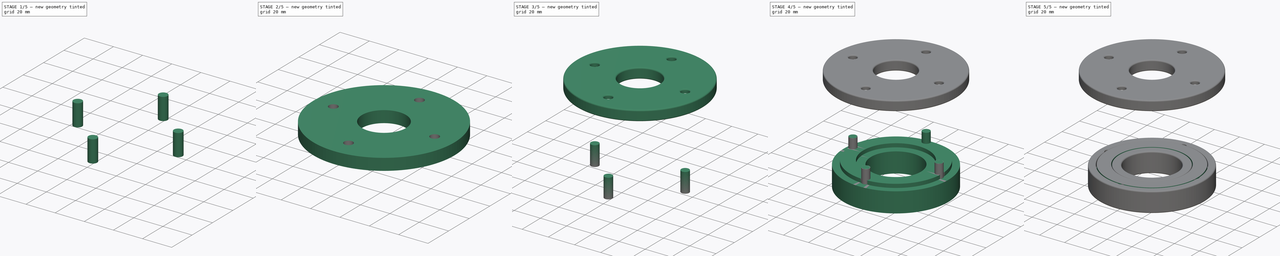
[diagram: build sequence overview — one tinted view per stage of 5, left to right]
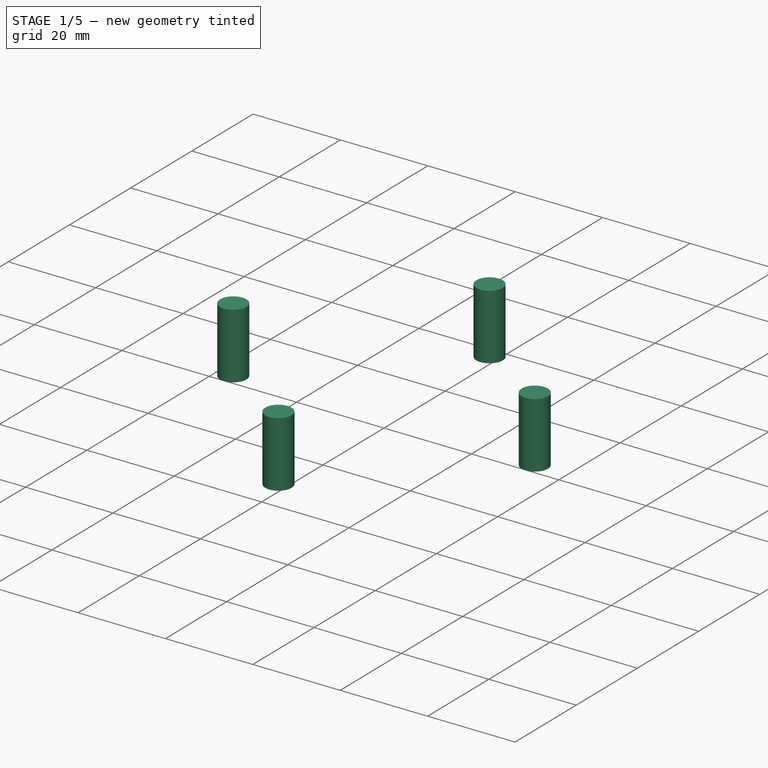
[diagram: stage 1 of 5 — iso view after this stage's code; geometry added in this stage tinted green]
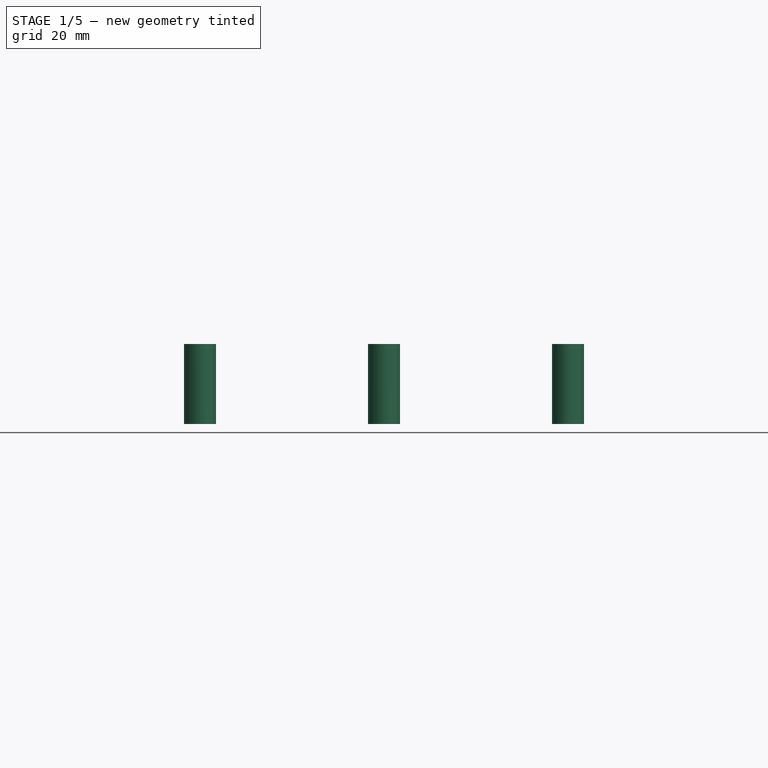
[diagram: stage 1 of 5 — front view after this stage's code; geometry added in this stage tinted green]
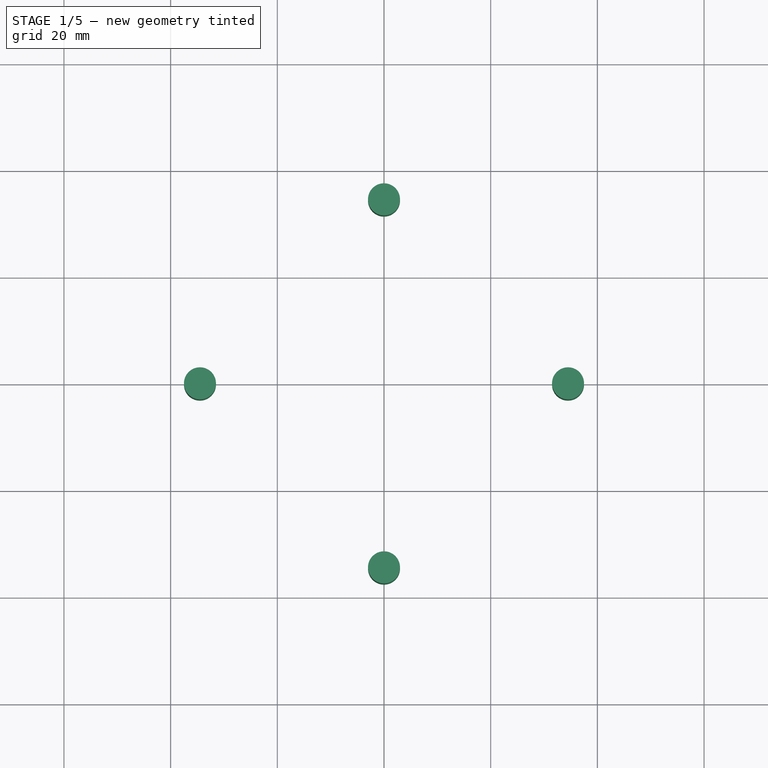
[diagram: stage 1 of 5 — top view after this stage's code; geometry added in this stage tinted green]
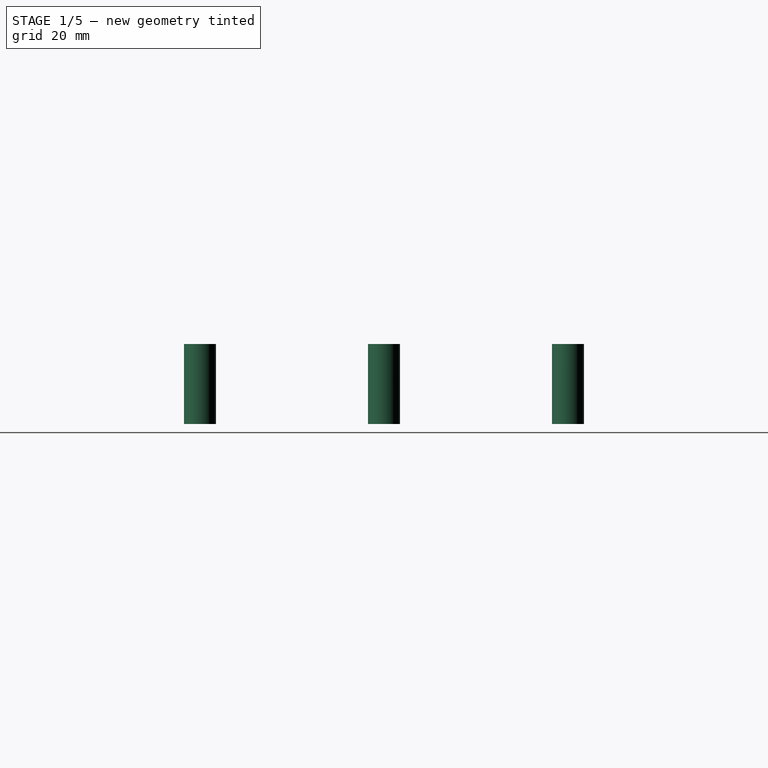
[diagram: stage 1 of 5 — right view after this stage's code; geometry added in this stage tinted green]
FCSTD DOCUMENT  (FreeCAD 1.0R39109 (Git))
Label: RubberSealStencil
License: All rights reserved
LicenseURL: https://en.wikipedia.org/wiki/All_rights_reserved
objects: Part::Cylinder×8, Part::FeaturePython×4, Part::Cut×4, Sketcher::SketchObject×3, Part::Extrusion×3, Part::MultiFuse×3, Part::Fillet×2, App::Part×1
note: 30 computed .brp shape members not serialized (recipe doc carries the construction recipe); baked Part::Feature solids carry a one-line shape summary decoded from their .brp

FEATURE [Part::Cylinder] Cylinder
  Angle = 360
  AttacherType = Attacher::AttachEngine3D
  FirstAngle = 0
  Height = 15
  Placement = pos=(0,34.5,15) rot=(0,0,1;0rad)
  Radius = 3
  SecondAngle = 0
FEATURE [Part::Cylinder] Cylinder001
  Angle = 360
  AttacherType = Attacher::AttachEngine3D
  FirstAngle = 0
  Height = 15
  Placement = pos=(0,-34.5,15) rot=(0,0,1;0rad)
  Radius = 3
  SecondAngle = 0
FEATURE [Part::Cylinder] Cylinder002
  Angle = 360
  AttacherType = Attacher::AttachEngine3D
  FirstAngle = 0
  Height = 15
  Placement = pos=(-34.5,0,15) rot=(0,0,1;0rad)
  Radius = 3
  SecondAngle = 0
FEATURE [Part::Cylinder] Cylinder003
  Angle = 360
  AttacherType = Attacher::AttachEngine3D
  FirstAngle = 0
  Height = 15
  Placement = pos=(34.5,0,15) rot=(0,0,1;0rad)
  Radius = 3
  SecondAngle = 0
FEATURE [Part::MultiFuse] Fusion001
  Refine = true
  Shapes = -> [Cylinder,Cylinder001,Cylinder002,Cylinder003]
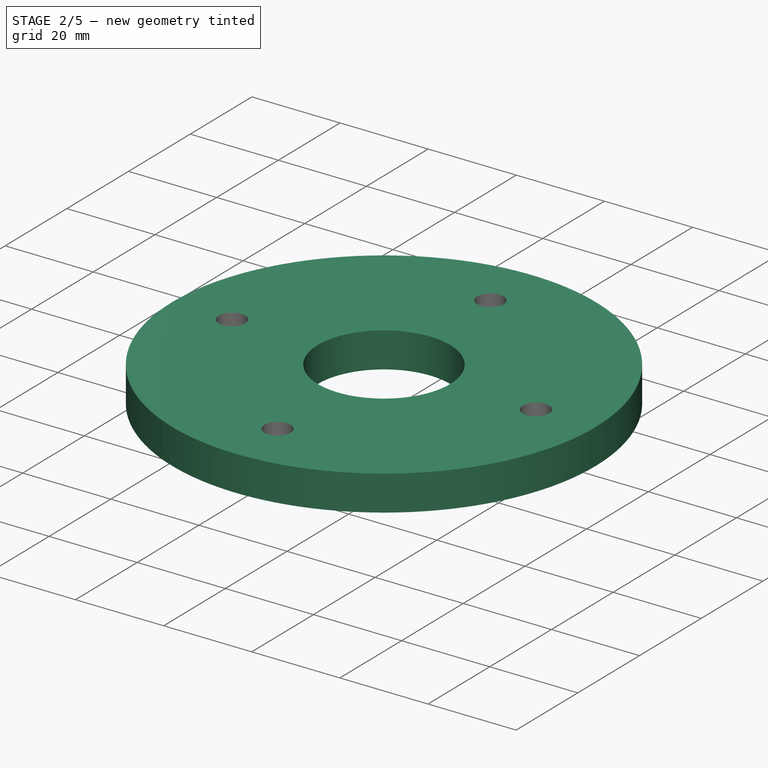
[diagram: stage 2 of 5 — iso view after this stage's code; geometry added in this stage tinted green]
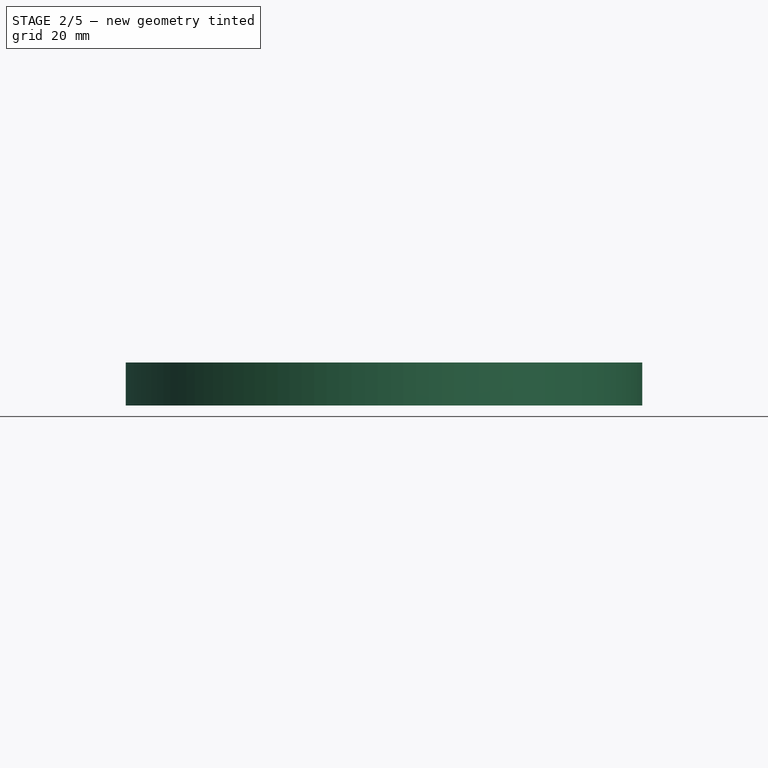
[diagram: stage 2 of 5 — front view after this stage's code; geometry added in this stage tinted green]
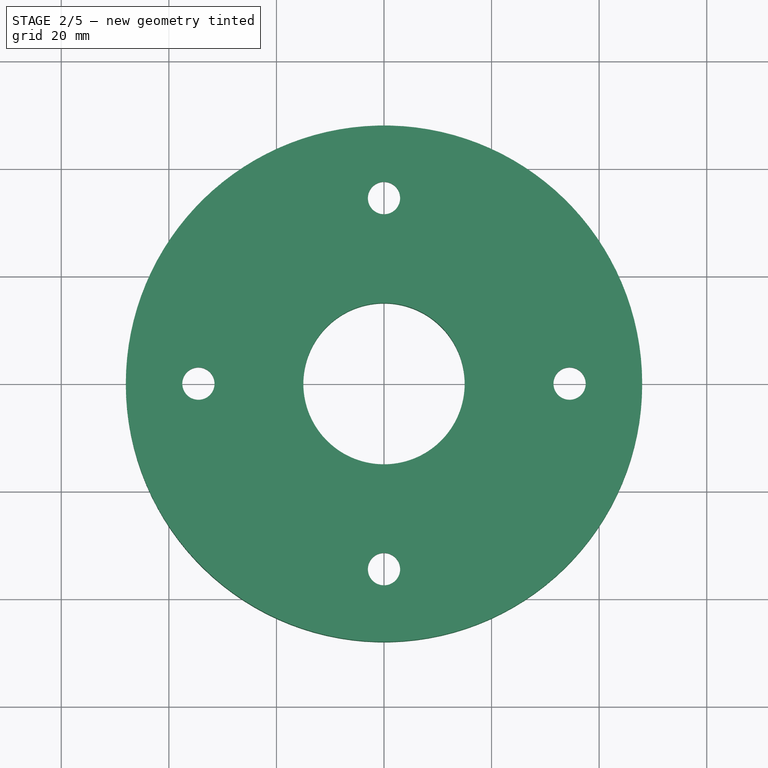
[diagram: stage 2 of 5 — top view after this stage's code; geometry added in this stage tinted green]
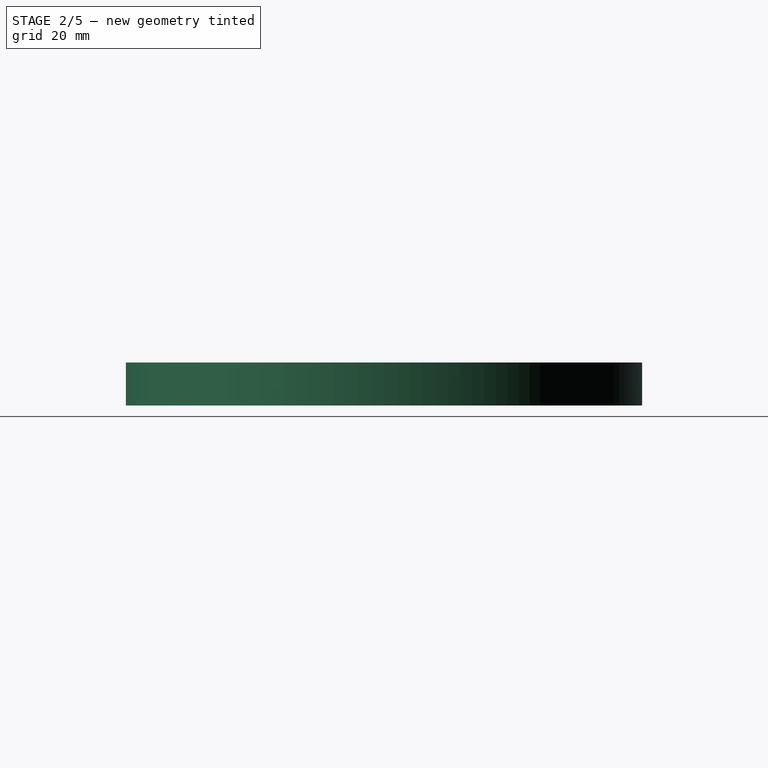
[diagram: stage 2 of 5 — right view after this stage's code; geometry added in this stage tinted green]
FEATURE [Part::FeaturePython] Tube001  # WARN: FeaturePython — macro-defined, semantics opaque (R4)
  AttacherType = Attacher::AttachEngine3D
  Height = 3
  InnerRadius = 15
  OuterRadius = 48
  Placement = pos=(0,0,19.5) rot=(0,0,1;0rad)
FEATURE [Part::FeaturePython] Tube002  # WARN: FeaturePython — macro-defined, semantics opaque (R4)
  AttacherType = Attacher::AttachEngine3D
  Height = 5
  InnerRadius = 42.5
  OuterRadius = 48
  Placement = pos=(0,0,14.5) rot=(0,0,1;0rad)
FEATURE [Part::FeaturePython] Tube003  # WARN: FeaturePython — macro-defined, semantics opaque (R4)
  AttacherType = Attacher::AttachEngine3D
  Height = 5
  InnerRadius = 15
  OuterRadius = 19
  Placement = pos=(0,0,14.5) rot=(0,0,1;0rad)
FEATURE [Part::MultiFuse] Fusion  label="Top"
  Refine = true
  Shapes = -> [Tube001,Tube002,Tube003]
FEATURE [Part::Cut] Cut002  label="Top_cut"
  Base = -> Fusion
  Refine = true
  Tool = -> Fusion001
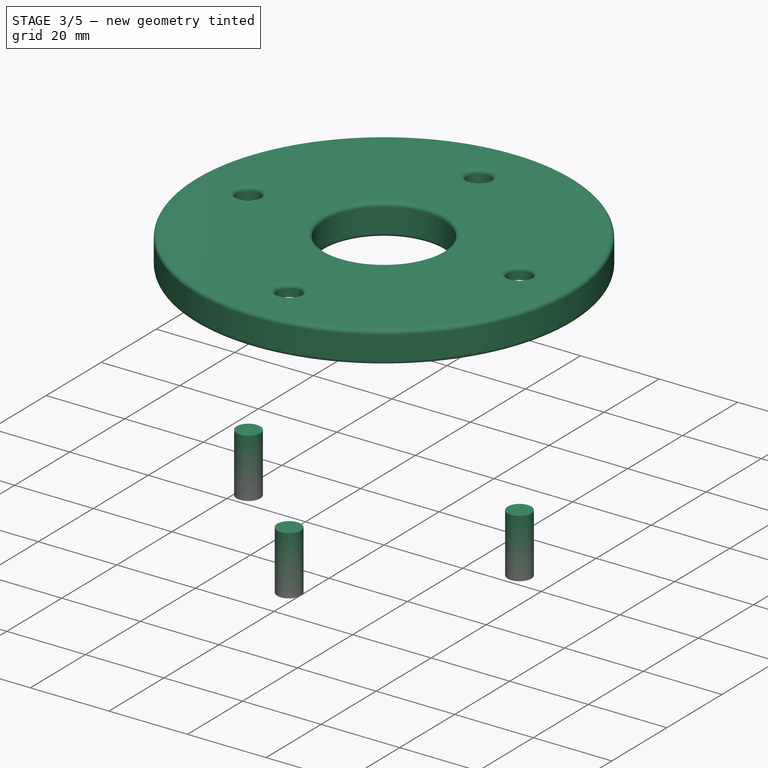
[diagram: stage 3 of 5 — iso view after this stage's code; geometry added in this stage tinted green]
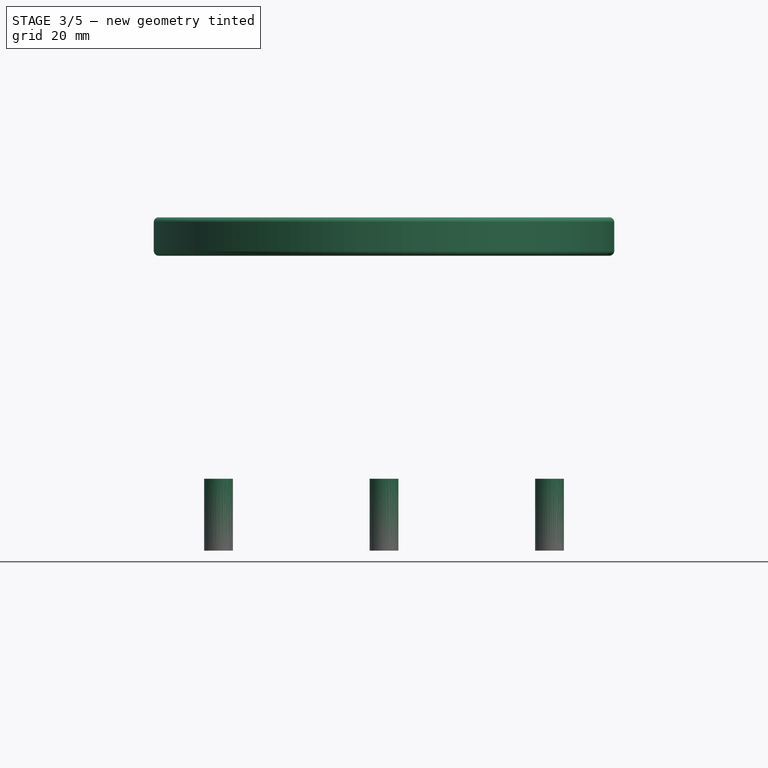
[diagram: stage 3 of 5 — front view after this stage's code; geometry added in this stage tinted green]
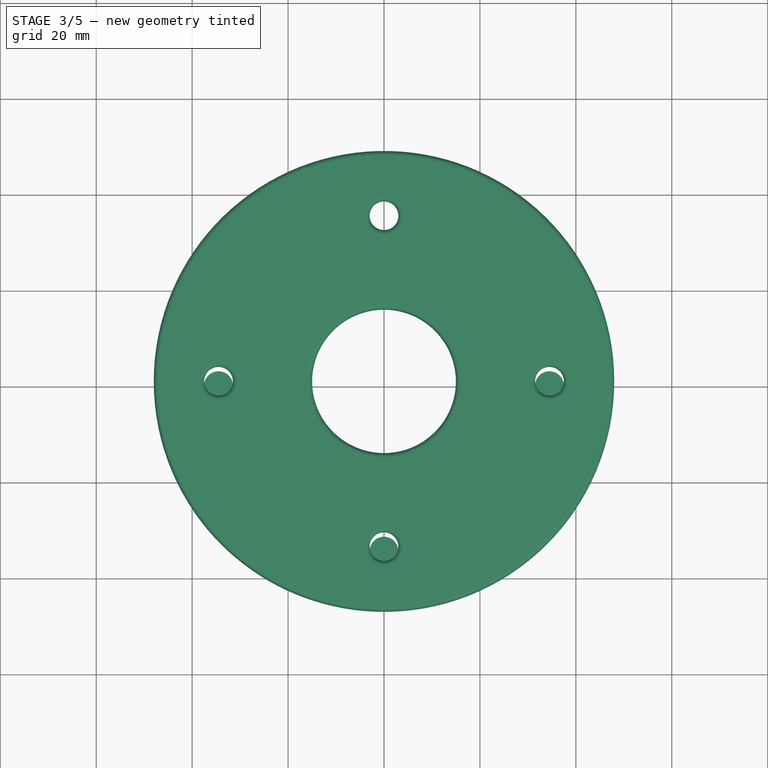
[diagram: stage 3 of 5 — top view after this stage's code; geometry added in this stage tinted green]
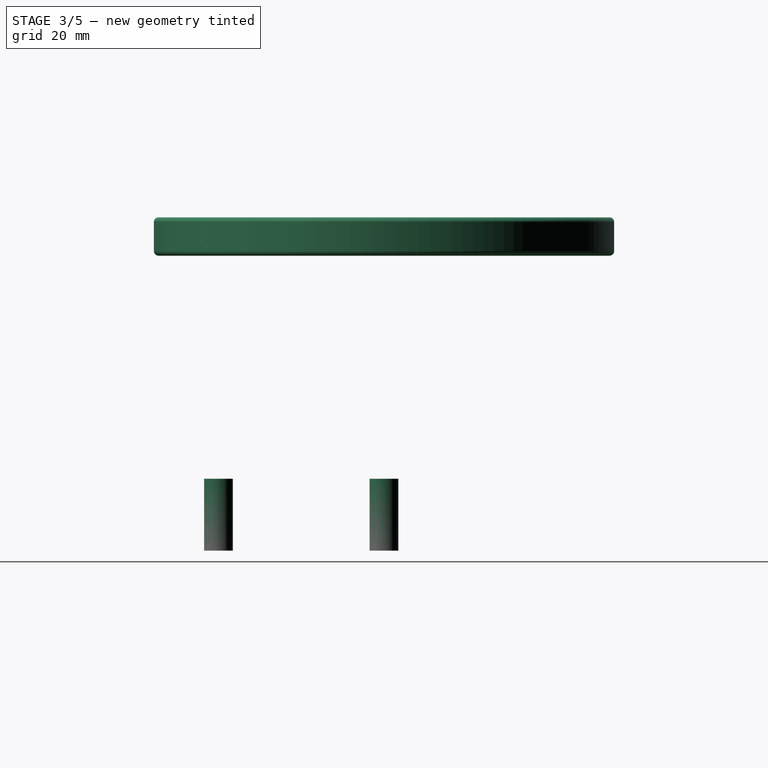
[diagram: stage 3 of 5 — right view after this stage's code; geometry added in this stage tinted green]
FEATURE [Part::Cylinder] Cylinder005
  Angle = 360
  AttacherType = Attacher::AttachEngine3D
  FirstAngle = 0
  Height = 15
  Placement = pos=(0,-34.5,15) rot=(0,0,1;0rad)
  Radius = 3
  SecondAngle = 0
FEATURE [Part::Cylinder] Cylinder006
  Angle = 360
  AttacherType = Attacher::AttachEngine3D
  FirstAngle = 0
  Height = 15
  Placement = pos=(-34.5,0,15) rot=(0,0,1;0rad)
  Radius = 3
  SecondAngle = 0
FEATURE [Part::Cylinder] Cylinder007
  Angle = 360
  AttacherType = Attacher::AttachEngine3D
  FirstAngle = 0
  Height = 15
  Placement = pos=(34.5,0,15) rot=(0,0,1;0rad)
  Radius = 3
  SecondAngle = 0
FEATURE [Part::Fillet] Fillet001  label="Top_Cover"
  Base = -> Cut002
  EdgeLinks = -> Cut002 [Edge1,Edge2,Edge4,Edge5,Edge7,Edge8,Edge9,Edge10,Edge11,Edge14,Edge20,Edge24]
  Edges = 12 edges r=1: [Edge1,Edge2,Edge4,Edge5,Edge7,Edge8,Edge9,Edge10,Edge11,Edge14,Edge20,Edge24]
  Placement = pos=(0,0,62) rot=(0,0,1;0rad)
FEATURE [App::Part] Part  label="Rubber_Seal_Stencil"
  Group = -> [Sketch,Extrude,Cylinder002,Cylinder,Cylinder001,Tube003,Fusion001,Fusion,Tube002,Cylinder003,Tube001,Cut002,Cylinder007,Cylinder005,Cut,Fillet,Cut001,Cylinder004,Cylinder006,Fusion002,Tube,Sketch002,Extrude001,Sketch001,Extrude002,Cut003,Fillet001]
  Origin = -> Origin
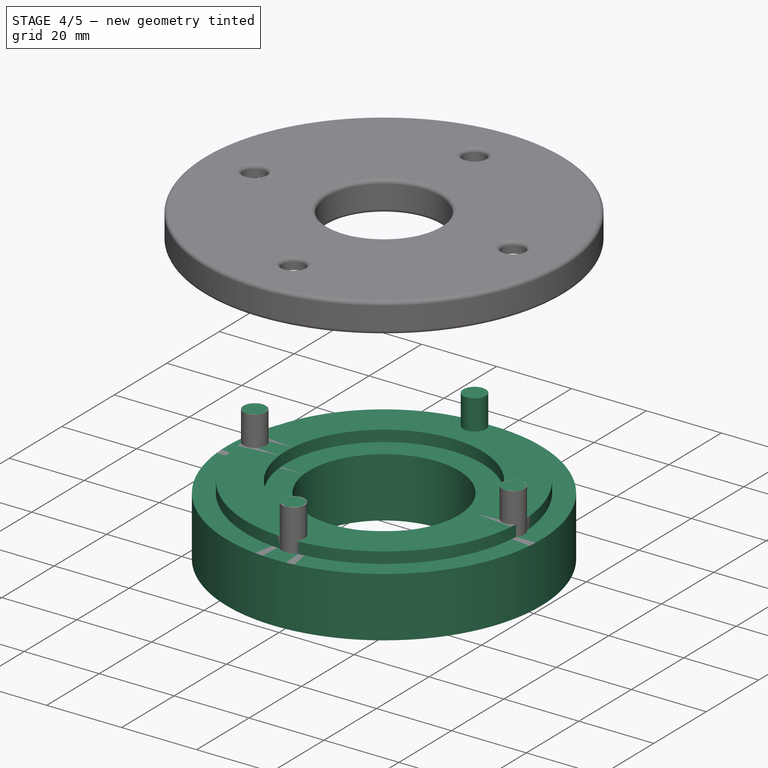
[diagram: stage 4 of 5 — iso view after this stage's code; geometry added in this stage tinted green]
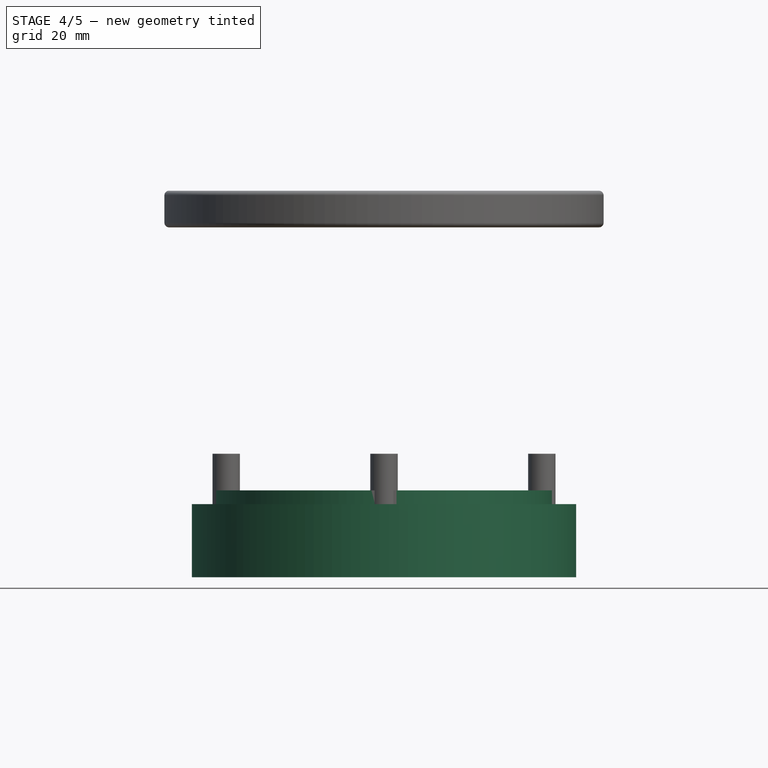
[diagram: stage 4 of 5 — front view after this stage's code; geometry added in this stage tinted green]
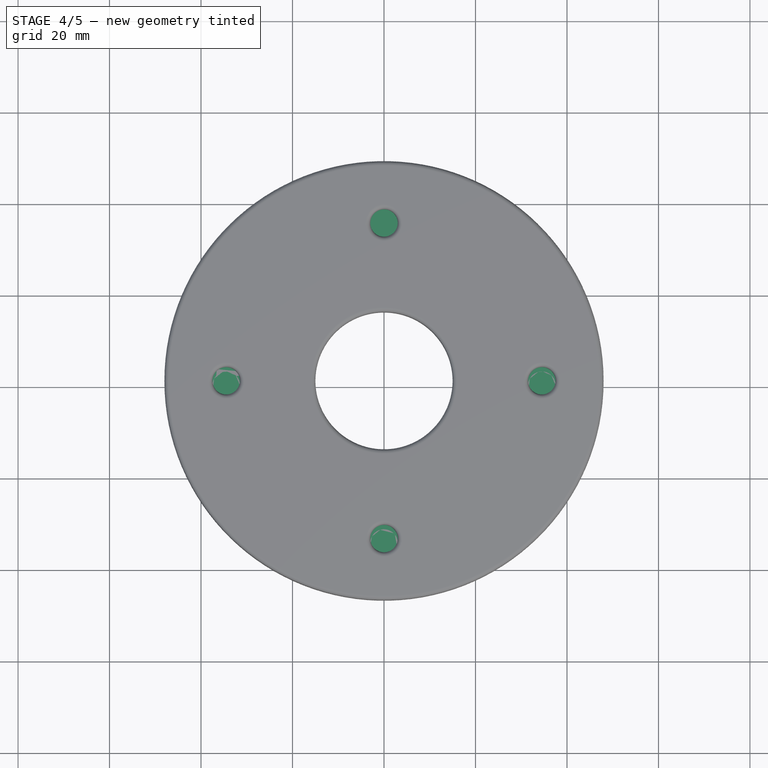
[diagram: stage 4 of 5 — top view after this stage's code; geometry added in this stage tinted green]
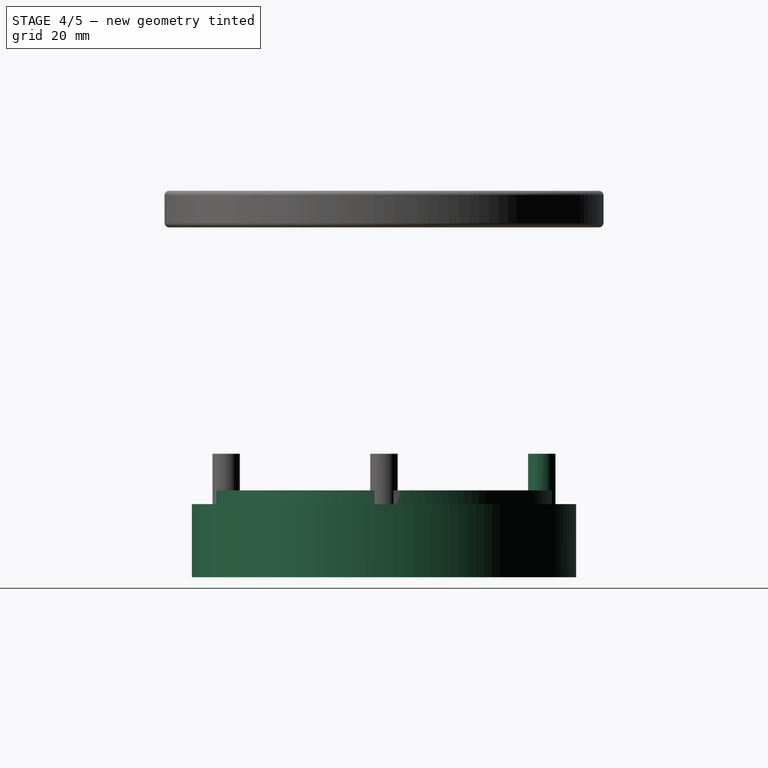
[diagram: stage 4 of 5 — right view after this stage's code; geometry added in this stage tinted green]
FEATURE [Part::FeaturePython] Tube  # WARN: FeaturePython — macro-defined, semantics opaque (R4)
  AttacherType = Attacher::AttachEngine3D
  Height = 16
  InnerRadius = 20
  OuterRadius = 42
FEATURE [Sketcher::SketchObject] Sketch001
  ArcFitTolerance = 1e-06
  FullyConstrained = true
  MakeInternals = false
  sketch-geometry (2):
    g0: Circle CenterX=0 CenterY=0 CenterZ=0 NormalX=0 NormalY=0 NormalZ=1 AngleXU=0 Radius=26.25
    g1: Circle CenterX=0 CenterY=0 CenterZ=0 NormalX=0 NormalY=0 NormalZ=1 AngleXU=0 Radius=36.75
  constraints (4):
    c: Coincident(g0,g-1)
    c: Coincident(g1,g0)
    c: Diameter(g0) = 52.5  '73'
    c: Diameter(g1) = 73.5
FEATURE [Part::Extrusion] Extrude001  label="Rubber_Seal_CUT"
  Base = -> Sketch001
  Dir = (0,0,1)
  DirMode = 2
  FaceMakerClass = Part::FaceMakerBullseye
  FaceMakerMode = 3
  LengthFwd = 7
  LengthRev = 0
  Placement = pos=(0,0,12) rot=(0,0,1;0rad)
  Solid = true
  Symmetric = false
FEATURE [Sketcher::SketchObject] Sketch002
  ArcFitTolerance = 1e-06
  FullyConstrained = true
  MakeInternals = false
  sketch-geometry (4):
    g0: Circle CenterX=0 CenterY=34.5 CenterZ=0 NormalX=0 NormalY=0 NormalZ=1 AngleXU=0 Radius=2
    g1: Circle CenterX=0 CenterY=-34.5 CenterZ=0 NormalX=0 NormalY=0 NormalZ=1 AngleXU=0 Radius=2
    g2: Circle CenterX=34.5 CenterY=0 CenterZ=0 NormalX=0 NormalY=0 NormalZ=1 AngleXU=0 Radius=2
    g3: Circle CenterX=-34.5 CenterY=0 CenterZ=0 NormalX=0 NormalY=0 NormalZ=1 AngleXU=0 Radius=2
  constraints (10):
    c: PointOnObject(g0,g-2)
    c: PointOnObject(g2,g-1)
    c: Equal(g0,g1)
    c: Equal(g0,g2)
    c: Equal(g0,g3)
    c: Diameter(g0) = 4
    c: DistanceX(g3,g-1) = 34.5
    c: Symmetric(g3,g2,g-2)
    c: DistanceY(g-1,g0) = 34.5
    c: Symmetric(g0,g1,g-1)
FEATURE [Part::Extrusion] Extrude002  label="holes"
  Base = -> Sketch002
  Dir = (0,0,1)
  DirMode = 2
  FaceMakerClass = Part::FaceMakerBullseye
  FaceMakerMode = 3
  LengthFwd = 8
  LengthRev = 0
  Placement = pos=(0,0,4) rot=(0,0,1;0rad)
  Solid = true
  Symmetric = false
FEATURE [Part::Cylinder] Cylinder004
  Angle = 360
  AttacherType = Attacher::AttachEngine3D
  FirstAngle = 0
  Height = 15
  Placement = pos=(0,34.5,15) rot=(0,0,1;0rad)
  Radius = 3
  SecondAngle = 0
FEATURE [Part::MultiFuse] Fusion002
  Placement = pos=(0,0,-3) rot=(0,0,1;0rad)
  Refine = true
  Shapes = -> [Cylinder004,Cylinder005,Cylinder006,Cylinder007]
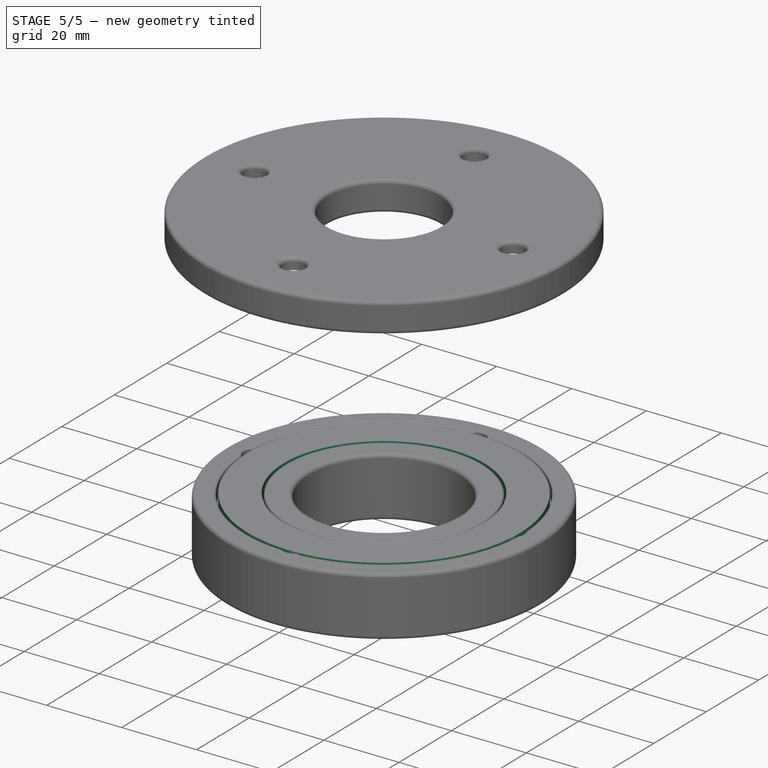
[diagram: stage 5 of 5 — iso view after this stage's code; geometry added in this stage tinted green]
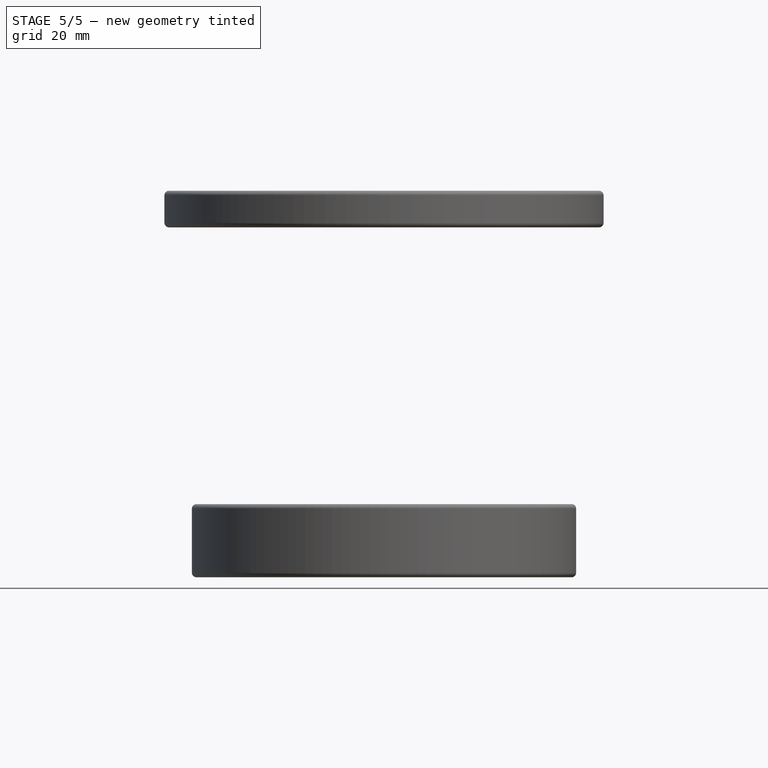
[diagram: stage 5 of 5 — front view after this stage's code; geometry added in this stage tinted green]
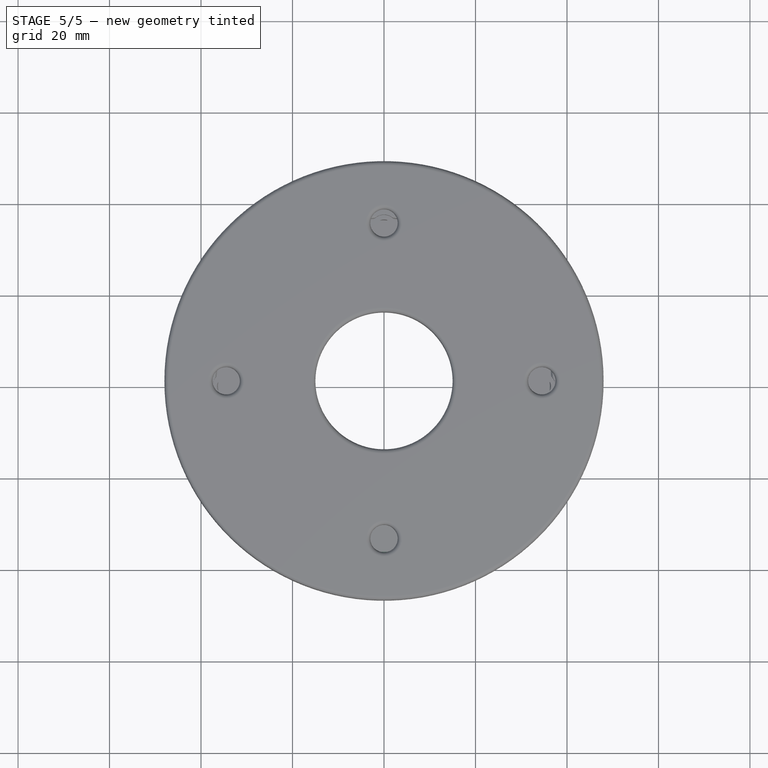
[diagram: stage 5 of 5 — top view after this stage's code; geometry added in this stage tinted green]
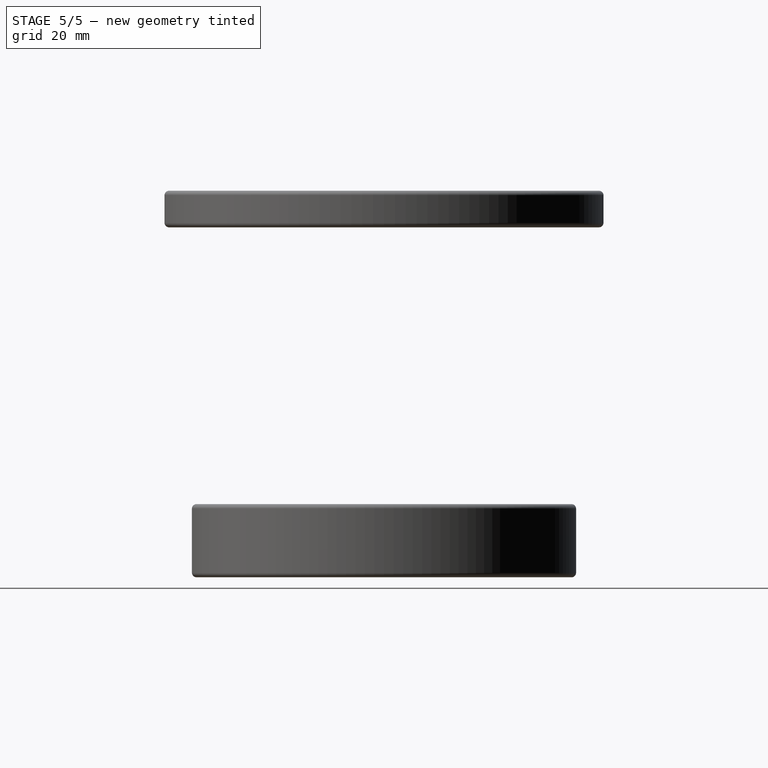
[diagram: stage 5 of 5 — right view after this stage's code; geometry added in this stage tinted green]
FEATURE [Sketcher::SketchObject] Sketch
  ArcFitTolerance = 1e-06
  FullyConstrained = true
  MakeInternals = false
  sketch-geometry (2):
    g0: Circle CenterX=0 CenterY=0 CenterZ=0 NormalX=0 NormalY=0 NormalZ=1 AngleXU=0 Radius=26.75
    g1: Circle CenterX=0 CenterY=0 CenterZ=0 NormalX=0 NormalY=0 NormalZ=1 AngleXU=0 Radius=36.25
  constraints (4):
    c: Coincident(g0,g-1)
    c: Coincident(g1,g0)
    c: Diameter(g0) = 53.5  '73'
    c: Diameter(g1) = 72.5
FEATURE [Part::Extrusion] Extrude  label="Rubber_Seal"
  Base = -> Sketch
  Dir = (0,0,1)
  DirMode = 2
  FaceMakerClass = Part::FaceMakerBullseye
  FaceMakerMode = 3
  LengthFwd = 4
  LengthRev = 0
  Placement = pos=(0,0,12) rot=(0,0,1;0rad)
  Solid = true
  Symmetric = false
FEATURE [Part::Cut] Cut  label="Bottom_Cut"
  Base = -> Tube
  Refine = true
  Tool = -> Extrude001
FEATURE [Part::Cut] Cut001  label="Bottom"
  Base = -> Cut
  Refine = true
  Tool = -> Extrude002
FEATURE [Part::Fillet] Fillet  label="Bottom_fillet"
  Base = -> Cut001
  EdgeLinks = -> Cut001 [Edge1,Edge3,?Edge4,Edge5,Edge6,Edge8,Edge12,?Edge15,Edge17,Edge19,Edge22,Edge24]
  Edges = 12 edges: [Edge1 r=1,Edge3 r=1,Edge4 r=0.5,Edge5 r=1,Edge6 r=0.2,Edge8 r=1,Edge12 r=0.5,Edge15 r=0.5,Edge17 r=1,Edge19 r=1,Edge22 r=1,Edge24 r=1]
FEATURE [Part::Cut] Cut003  label="Bottom_Punch_Cut"
  Base = -> Fillet
  Refine = true
  Tool = -> Fusion002
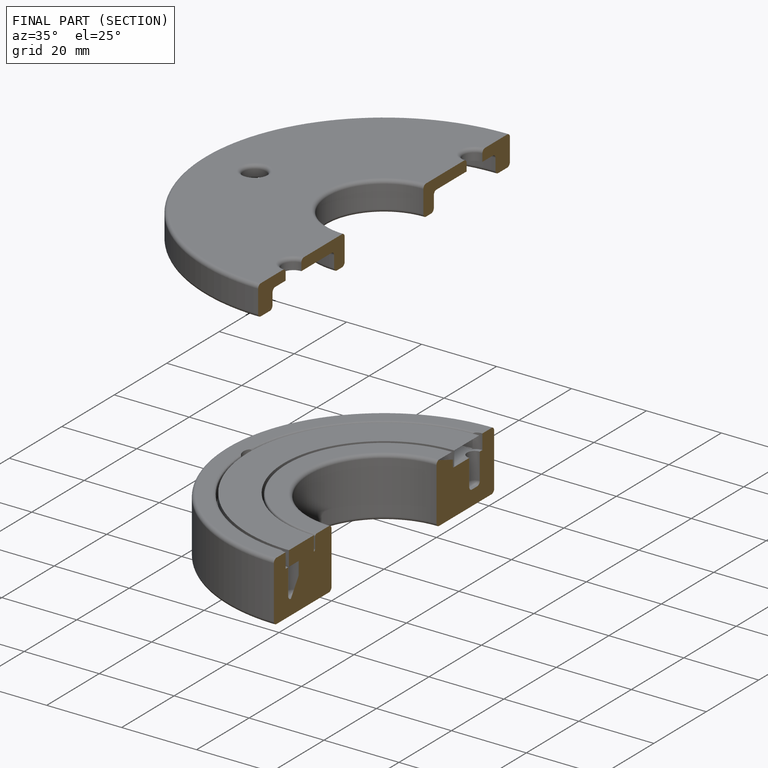
[diagram: finished part — half-section view (interior)]
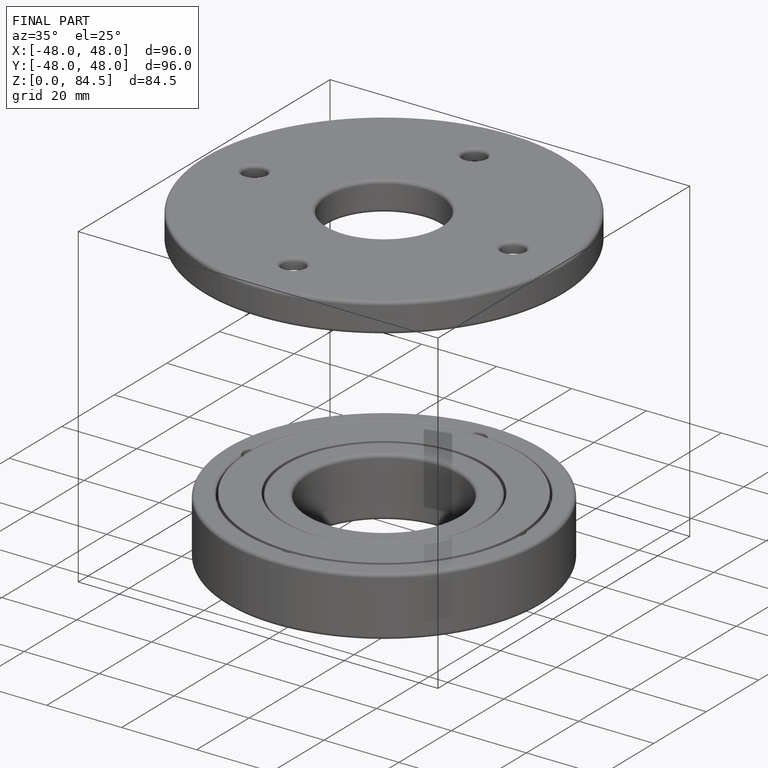
[diagram: finished part — iso view with bounding-box wireframe]
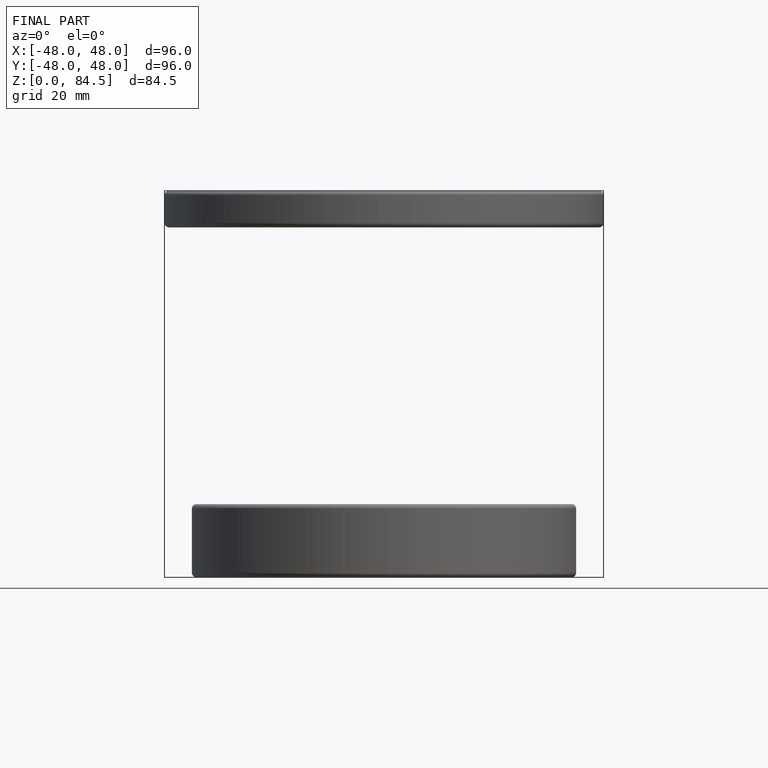
[diagram: finished part — front view with bounding-box wireframe]
